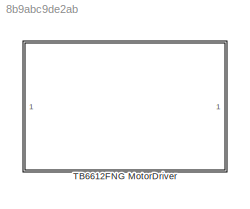
MODEL slx_8b9abc9de2ab
KIND library
CONFIG AbsTol = auto
CONFIG EnableMultiTasking = off
CONFIG FixedStep = auto
CONFIG MaxStep = auto
CONFIG MinStep = auto
CONFIG RelTol = 1e-3
CONFIG SampleTimeConstraint = Unconstrained
CONFIG SolverName = VariableStepAuto
CONFIG StartTime = 0.0
CONFIG StopTime = 10.0
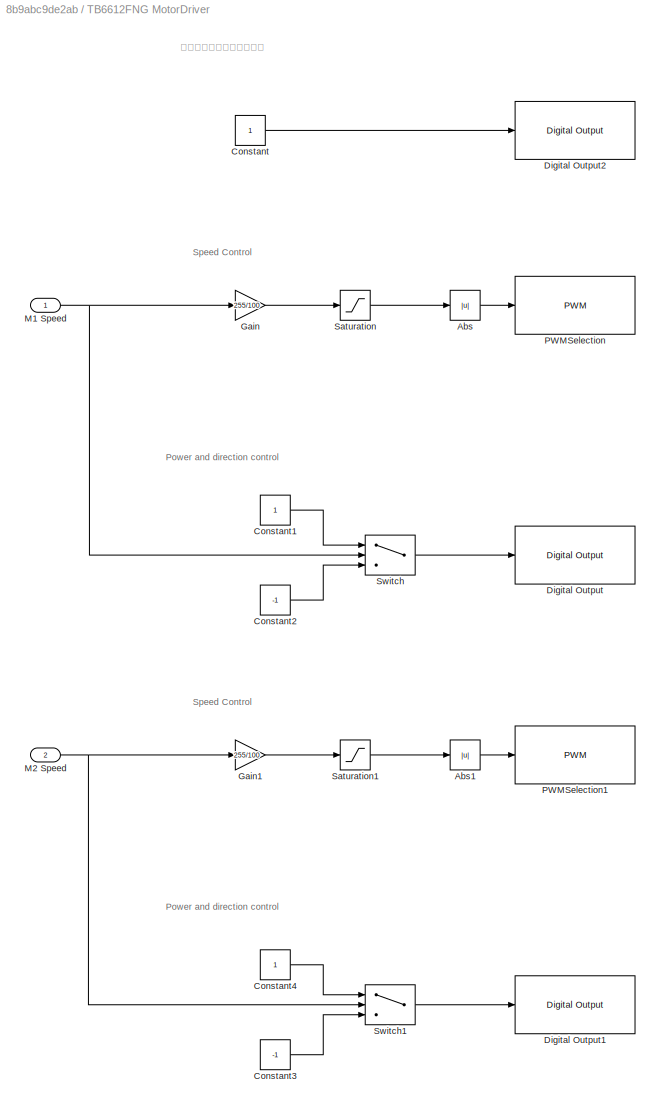
BLOCK [SubSystem] TB6612FNG MotorDriver
BLOCK [Abs] TB6612FNG MotorDriver/Abs
  SaturateOnIntegerOverflow = off
BLOCK [Abs] TB6612FNG MotorDriver/Abs1
  SaturateOnIntegerOverflow = off
BLOCK [Constant] TB6612FNG MotorDriver/Constant
BLOCK [Constant] TB6612FNG MotorDriver/Constant1
BLOCK [Constant] TB6612FNG MotorDriver/Constant2
  Value = -1
BLOCK [Constant] TB6612FNG MotorDriver/Constant3
  Value = -1
BLOCK [Constant] TB6612FNG MotorDriver/Constant4
BLOCK [Reference] TB6612FNG MotorDriver/Digital Output  REF=arduinolib/Digital Output
  LibrarySourceBlock = arduinolib/L293D DC Motor/Digital Output
  SourceBlock = arduinolib/Digital Output
  SourceType = Arduino Digital Output
BLOCK [Reference] TB6612FNG MotorDriver/Digital Output1  REF=arduinolib/Digital Output
  LibrarySourceBlock = arduinolib/L293D DC Motor/Digital Output
  SourceBlock = arduinolib/Digital Output
  SourceType = Arduino Digital Output
BLOCK [Reference] TB6612FNG MotorDriver/Digital Output2  REF=arduinolib/Digital Output
  SourceBlock = arduinolib/Digital Output
  SourceType = Arduino Digital Output
BLOCK [Gain] TB6612FNG MotorDriver/Gain
  Gain = 255/100
BLOCK [Gain] TB6612FNG MotorDriver/Gain1
  Gain = 255/100
BLOCK [Inport] TB6612FNG MotorDriver/M1 Speed
BLOCK [Inport] TB6612FNG MotorDriver/M2 Speed
  Port = 2
BLOCK [Reference] TB6612FNG MotorDriver/PWMSelection  REF=arduinolib/PWM
  LibrarySourceBlock = arduinolib/L293D DC Motor/PWMSelection
  SourceBlock = arduinolib/PWM
  SourceType = Arduino PWM
BLOCK [Reference] TB6612FNG MotorDriver/PWMSelection1  REF=arduinolib/PWM
  LibrarySourceBlock = arduinolib/L293D DC Motor/PWMSelection
  SourceBlock = arduinolib/PWM
  SourceType = Arduino PWM
BLOCK [Saturate] TB6612FNG MotorDriver/Saturation
  LowerLimit = -255
  UpperLimit = 255
BLOCK [Saturate] TB6612FNG MotorDriver/Saturation1
  LowerLimit = -255
  UpperLimit = 255
BLOCK [Switch] TB6612FNG MotorDriver/Switch
  InputSameDT = off
  SaturateOnIntegerOverflow = off
BLOCK [Switch] TB6612FNG MotorDriver/Switch1
  InputSameDT = off
  SaturateOnIntegerOverflow = off
ANNOTATION TB6612FNG MotorDriver: Power and direction control
ANNOTATION TB6612FNG MotorDriver: Speed Control
ANNOTATION TB6612FNG MotorDriver: モータドライバの制御準備
LINE TB6612FNG MotorDriver/Abs1:1 -> TB6612FNG MotorDriver/PWMSelection1:1
LINE TB6612FNG MotorDriver/Abs:1 -> TB6612FNG MotorDriver/PWMSelection:1
LINE TB6612FNG MotorDriver/Constant1:1 -> TB6612FNG MotorDriver/Switch:1
LINE TB6612FNG MotorDriver/Constant2:1 -> TB6612FNG MotorDriver/Switch:3
LINE TB6612FNG MotorDriver/Constant3:1 -> TB6612FNG MotorDriver/Switch1:3
LINE TB6612FNG MotorDriver/Constant4:1 -> TB6612FNG MotorDriver/Switch1:1
LINE TB6612FNG MotorDriver/Constant:1 -> TB6612FNG MotorDriver/Digital Output2:1
LINE TB6612FNG MotorDriver/Gain1:1 -> TB6612FNG MotorDriver/Saturation1:1
LINE TB6612FNG MotorDriver/Gain:1 -> TB6612FNG MotorDriver/Saturation:1
NET TB6612FNG MotorDriver/M1 Speed:1 -> TB6612FNG MotorDriver/Gain:1, TB6612FNG MotorDriver/Switch:2
NET TB6612FNG MotorDriver/M2 Speed:1 -> TB6612FNG MotorDriver/Gain1:1, TB6612FNG MotorDriver/Switch1:2
LINE TB6612FNG MotorDriver/Saturation1:1 -> TB6612FNG MotorDriver/Abs1:1
LINE TB6612FNG MotorDriver/Saturation:1 -> TB6612FNG MotorDriver/Abs:1
LINE TB6612FNG MotorDriver/Switch1:1 -> TB6612FNG MotorDriver/Digital Output1:1
LINE TB6612FNG MotorDriver/Switch:1 -> TB6612FNG MotorDriver/Digital Output:1
note: NET lines group one-source signal fan-out (src -> all destinations, sorted); 1:1 wires keep LINE
